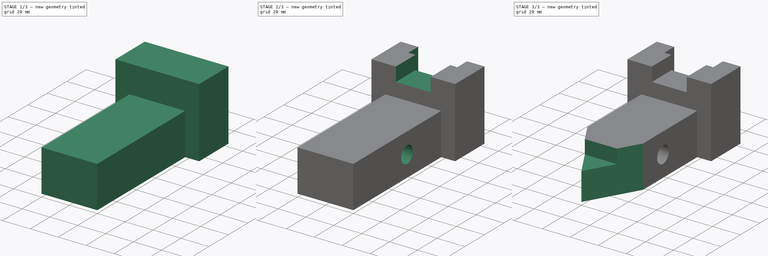
[diagram: build sequence overview — one tinted view per stage of 3, left to right]
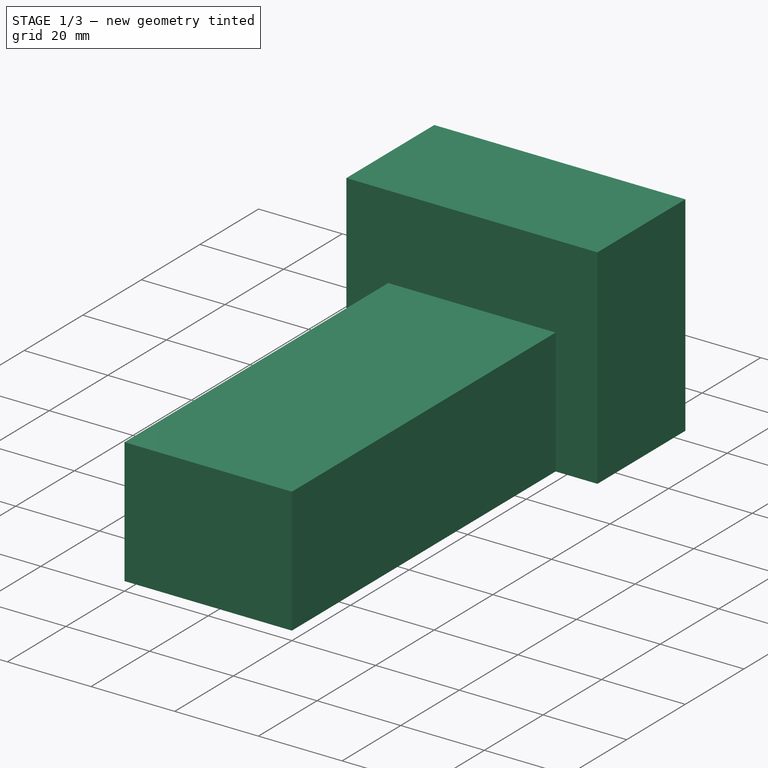
[diagram: stage 1 of 3 — iso view after this stage's code; geometry added in this stage tinted green]
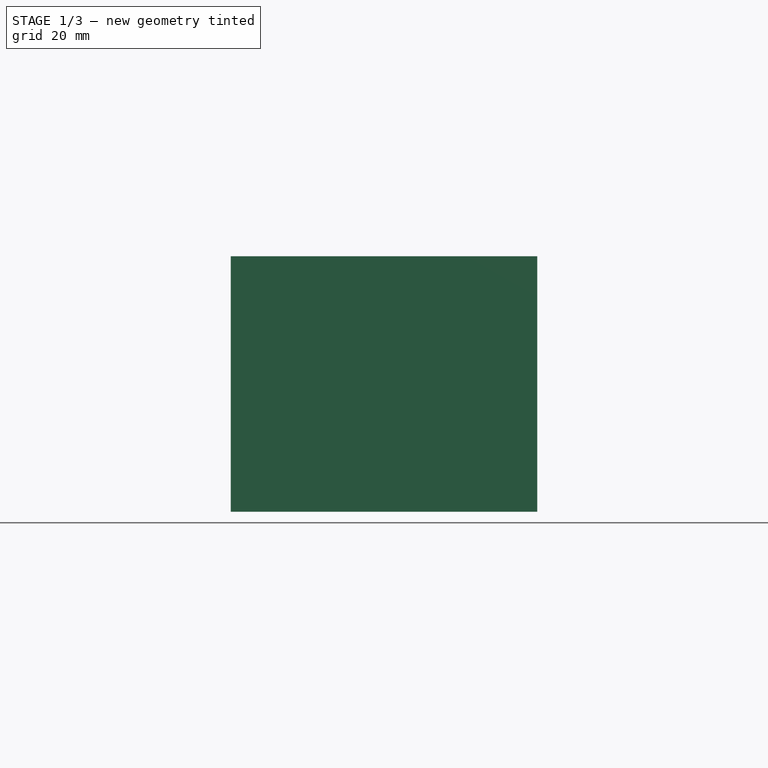
[diagram: stage 1 of 3 — front view after this stage's code; geometry added in this stage tinted green]
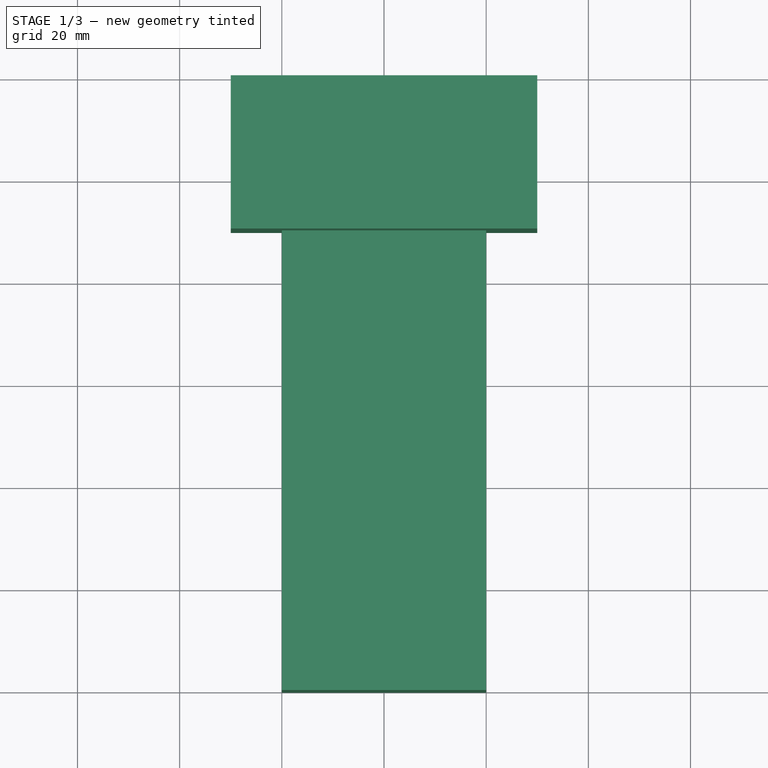
[diagram: stage 1 of 3 — top view after this stage's code; geometry added in this stage tinted green]
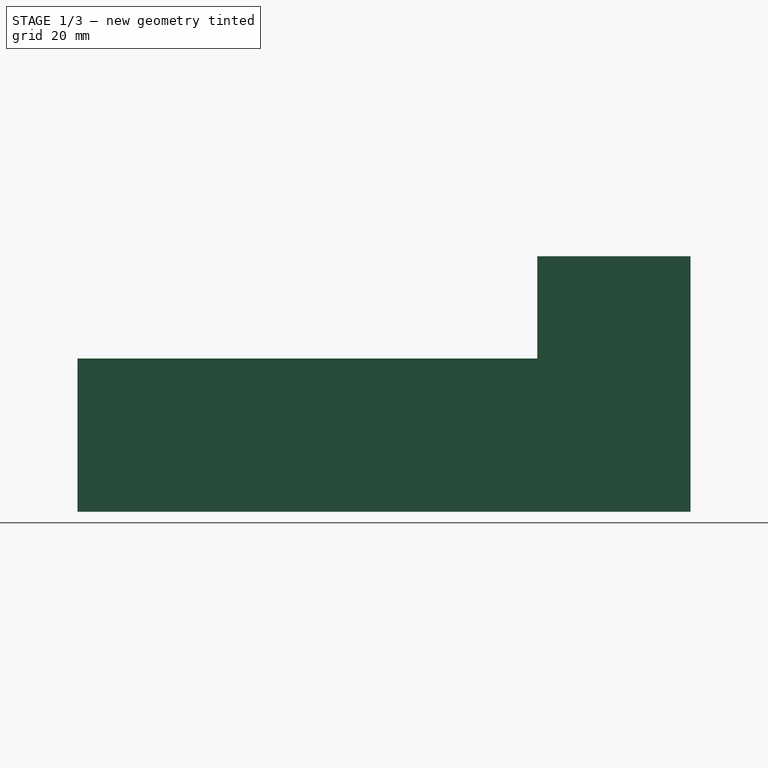
[diagram: stage 1 of 3 — right view after this stage's code; geometry added in this stage tinted green]
FCSTD DOCUMENT  (FreeCAD 0.16R6700 (Git))
Label: ejer5 final
License: All rights reserved
LicenseURL: http://en.wikipedia.org/wiki/All_rights_reserved
objects: Sketcher::SketchObject×7, PartDesign::Pocket×5, PartDesign::Pad×2
note: 21 computed .brp shape members not serialized (recipe doc carries the construction recipe); baked Part::Feature solids carry a one-line shape summary decoded from their .brp

FEATURE [Sketcher::SketchObject] Sketch
  Placement = pos=(0,0,0) rot=(-1,0,0;4.71239rad)
  sketch-geometry (4):
    g0: LineSegment StartX=-30 StartY=0 StartZ=0 EndX=30 EndY=0 EndZ=0
    g1: LineSegment StartX=30 StartY=0 StartZ=0 EndX=30 EndY=50 EndZ=0
    g2: LineSegment StartX=30 StartY=50 StartZ=0 EndX=-30 EndY=50 EndZ=0
    g3: LineSegment StartX=-30 StartY=50 StartZ=0 EndX=-30 EndY=0 EndZ=0
  constraints (12):
    c: Coincident(g0,g1)
    c: Coincident(g1,g2)
    c: Coincident(g2,g3)
    c: Coincident(g3,g0)
    c: Horizontal(g0)
    c: Horizontal(g2)
    c: Vertical(g1)
    c: Vertical(g3)
    c: DistanceY(g3,g3) = 50
    c: DistanceX(g2,g2) = 60
    c: Symmetric(g0,g0,g-2)
    c: PointOnObject(g-1,g0)
FEATURE [PartDesign::Pad] Pad
  Length = 30
  Length2 = 100
  Placement = pos=(0,0,0) rot=(-1,0,0;4.71239rad)
  Sketch = -> Sketch
  Type = 0
FEATURE [Sketcher::SketchObject] Sketch001
  Placement = pos=(0,-30,0) rot=(1,0,0;1.5708rad)
  Support = -> Pad [Face6]
  sketch-geometry (4):
    g0: LineSegment StartX=-20 StartY=0 StartZ=0 EndX=20 EndY=0 EndZ=0
    g1: LineSegment StartX=20 StartY=0 StartZ=0 EndX=20 EndY=30 EndZ=0
    g2: LineSegment StartX=20 StartY=30 StartZ=0 EndX=-20 EndY=30 EndZ=0
    g3: LineSegment StartX=-20 StartY=30 StartZ=0 EndX=-20 EndY=0 EndZ=0
  constraints (12):
    c: Coincident(g0,g1)
    c: Coincident(g1,g2)
    c: Coincident(g2,g3)
    c: Coincident(g3,g0)
    c: Horizontal(g0)
    c: Horizontal(g2)
    c: Vertical(g1)
    c: Vertical(g3)
    c: PointOnObject(g0,g-1)
    c: Symmetric(g0,g0,g-2)
    c: DistanceY(g1,g1) = 30
    c: DistanceX(g2,g2) = 40
FEATURE [PartDesign::Pad] Pad001
  Length = 90
  Length2 = 100
  Placement = pos=(0,0,0) rot=(-1,0,0;4.71239rad)
  Sketch = -> Sketch001
  Type = 0
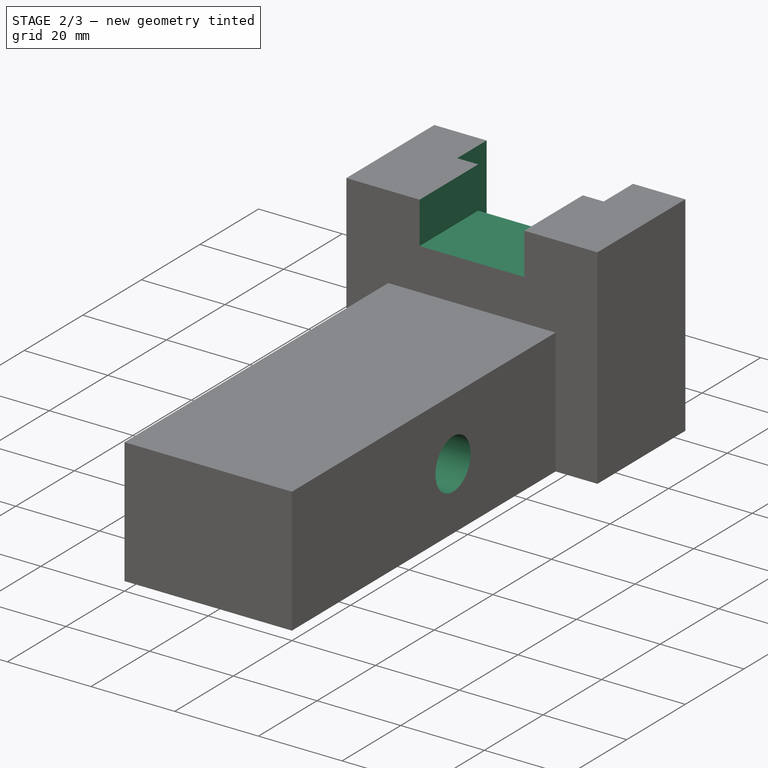
[diagram: stage 2 of 3 — iso view after this stage's code; geometry added in this stage tinted green]
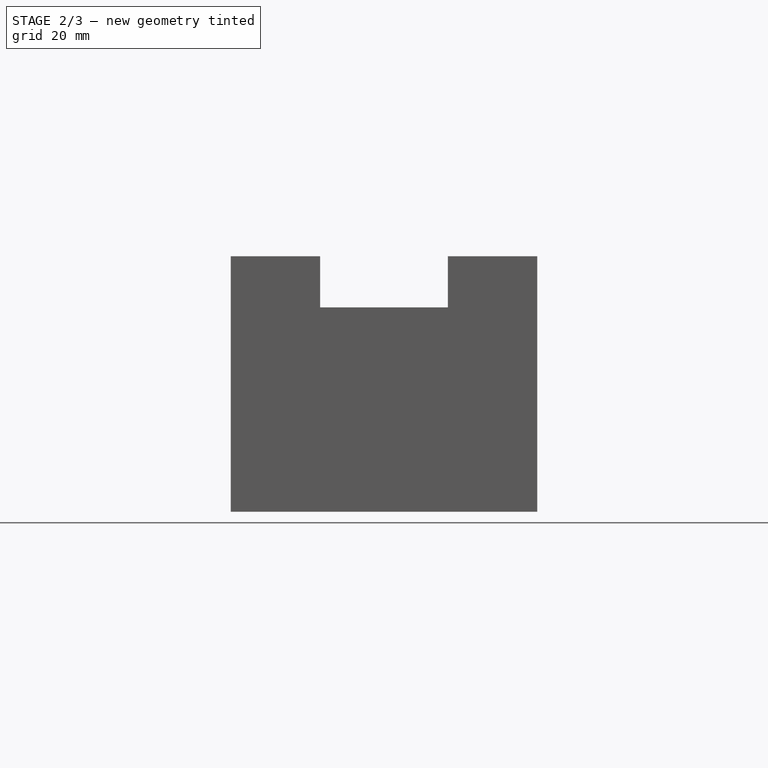
[diagram: stage 2 of 3 — front view after this stage's code; geometry added in this stage tinted green]
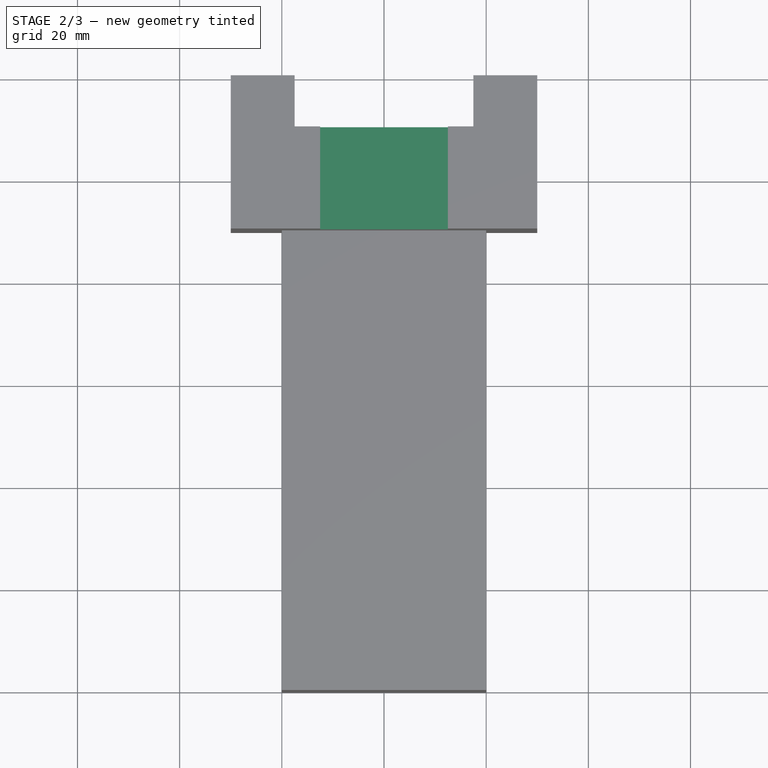
[diagram: stage 2 of 3 — top view after this stage's code; geometry added in this stage tinted green]
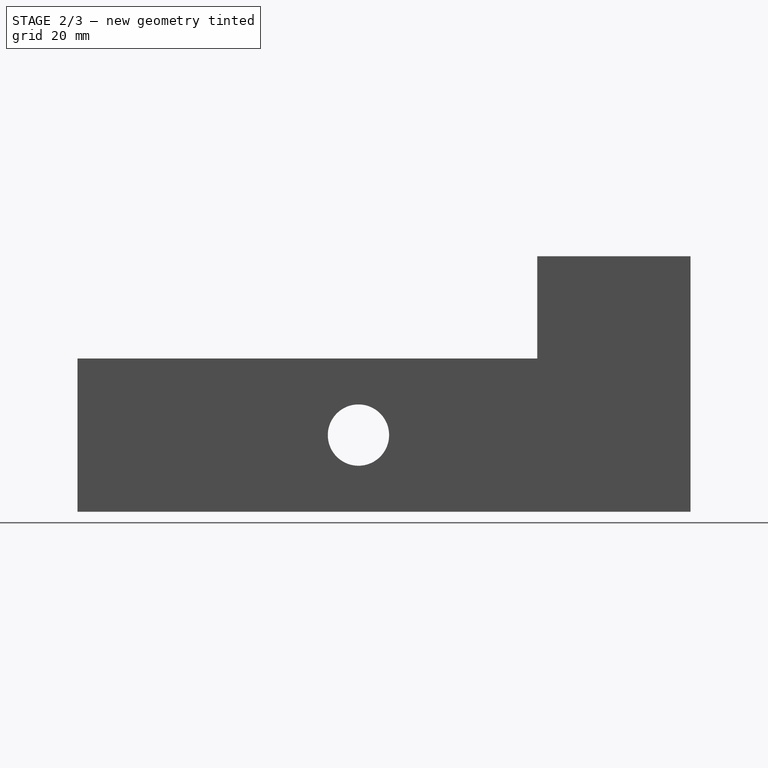
[diagram: stage 2 of 3 — right view after this stage's code; geometry added in this stage tinted green]
FEATURE [Sketcher::SketchObject] Sketch002
  Placement = pos=(0,0,50) rot=(0,0,1;3.14159rad)
  Support = -> Pad001 [Face2]
  sketch-geometry (4):
    g0: LineSegment StartX=-17.5 StartY=0 StartZ=0 EndX=17.5 EndY=0 EndZ=0
    g1: LineSegment StartX=17.5 StartY=0 StartZ=0 EndX=17.5 EndY=10 EndZ=0
    g2: LineSegment StartX=17.5 StartY=10 StartZ=0 EndX=-17.5 EndY=10 EndZ=0
    g3: LineSegment StartX=-17.5 StartY=10 StartZ=0 EndX=-17.5 EndY=0 EndZ=0
  constraints (12):
    c: Coincident(g0,g1)
    c: Coincident(g1,g2)
    c: Coincident(g2,g3)
    c: Coincident(g3,g0)
    c: Horizontal(g0)
    c: Horizontal(g2)
    c: Vertical(g1)
    c: Vertical(g3)
    c: PointOnObject(g0,g-1)
    c: Symmetric(g0,g0,g-2)
    c: DistanceX(g2,g2) = 35
    c: DistanceY(g1,g1) = 10
FEATURE [PartDesign::Pocket] Pocket
  Length = 5
  Placement = pos=(0,0,0) rot=(-1,0,0;4.71239rad)
  Sketch = -> Sketch002
  Type = 1
FEATURE [Sketcher::SketchObject] Sketch003
  ExternalGeometry = -> [Pocket]
  Placement = pos=(0,0,50) rot=(0,0,1;3.14159rad)
  Support = -> Pocket [Face2]
  sketch-geometry (4):
    g0: LineSegment StartX=-12.5 StartY=30 StartZ=0 EndX=12.5 EndY=30 EndZ=0
    g1: LineSegment StartX=12.5 StartY=30 StartZ=0 EndX=12.5 EndY=3.37666 EndZ=0
    g2: LineSegment StartX=12.5 StartY=3.37666 StartZ=0 EndX=-12.5 EndY=3.37666 EndZ=0
    g3: LineSegment StartX=-12.5 StartY=3.37666 StartZ=0 EndX=-12.5 EndY=30 EndZ=0
  constraints (11):
    c: Coincident(g0,g1)
    c: Coincident(g1,g2)
    c: Coincident(g2,g3)
    c: Coincident(g3,g0)
    c: Horizontal(g0)
    c: Horizontal(g2)
    c: Vertical(g1)
    c: Vertical(g3)
    c: PointOnObject(g0,g-3)
    c: Symmetric(g1,g2,g-2)
    c: DistanceX(g2,g2) = 25
FEATURE [PartDesign::Pocket] Pocket001
  Length = 10
  Placement = pos=(0,0,0) rot=(-1,0,0;4.71239rad)
  Sketch = -> Sketch003
  Type = 0
FEATURE [Sketcher::SketchObject] Sketch004
  Placement = pos=(20,0,0) rot=(0.707107,0,0.707107;3.14159rad)
  Support = -> Pocket001 [Face11]
  sketch-geometry (1):
    g0: Circle CenterX=15 CenterY=65 CenterZ=0 NormalX=0 NormalY=0 NormalZ=1 Radius=6
  constraints (3):
    c: DistanceY(g-1,g0) = 65
    c: DistanceX(g-1,g0) = 15
    c: Radius(g0) = 6
FEATURE [PartDesign::Pocket] Pocket002
  Length = 5
  Placement = pos=(0,0,0) rot=(-1,0,0;4.71239rad)
  Sketch = -> Sketch004
  Type = 1
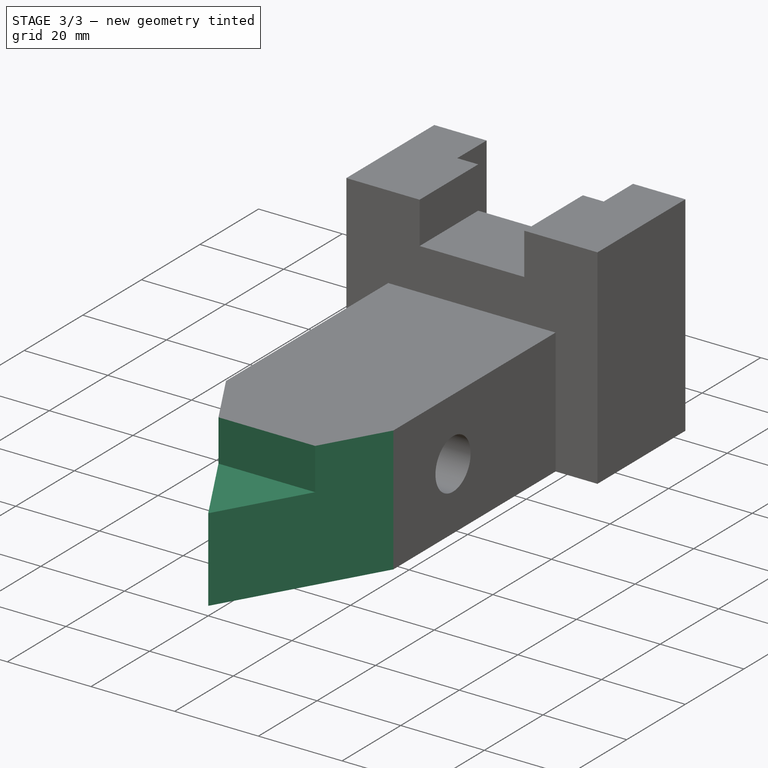
[diagram: stage 3 of 3 — iso view after this stage's code; geometry added in this stage tinted green]
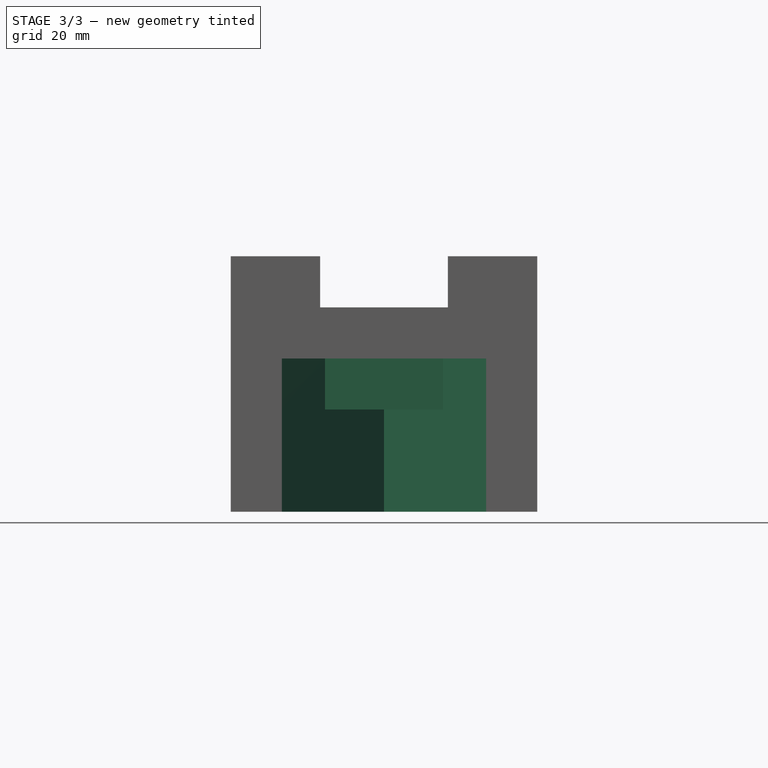
[diagram: stage 3 of 3 — front view after this stage's code; geometry added in this stage tinted green]
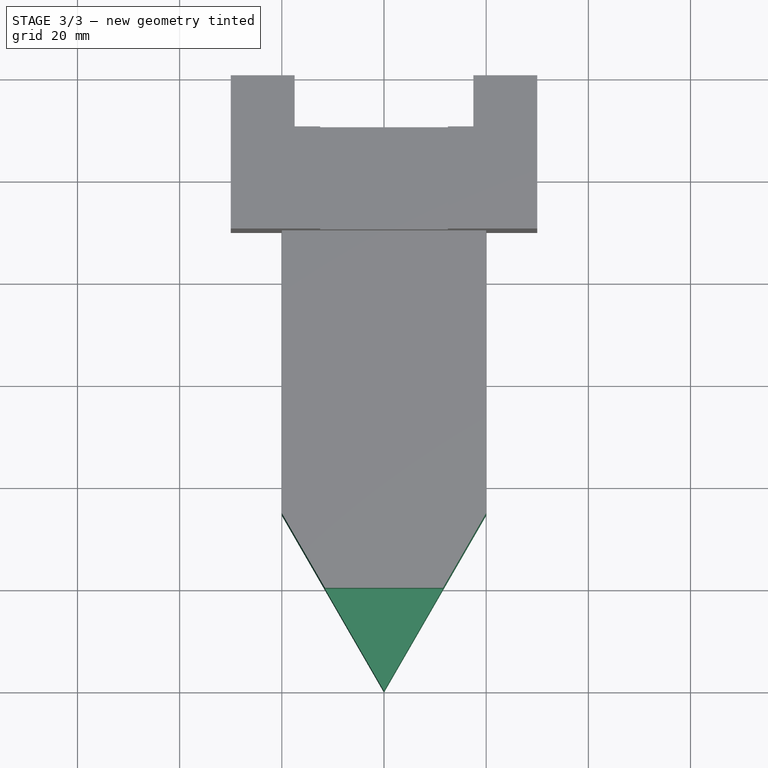
[diagram: stage 3 of 3 — top view after this stage's code; geometry added in this stage tinted green]
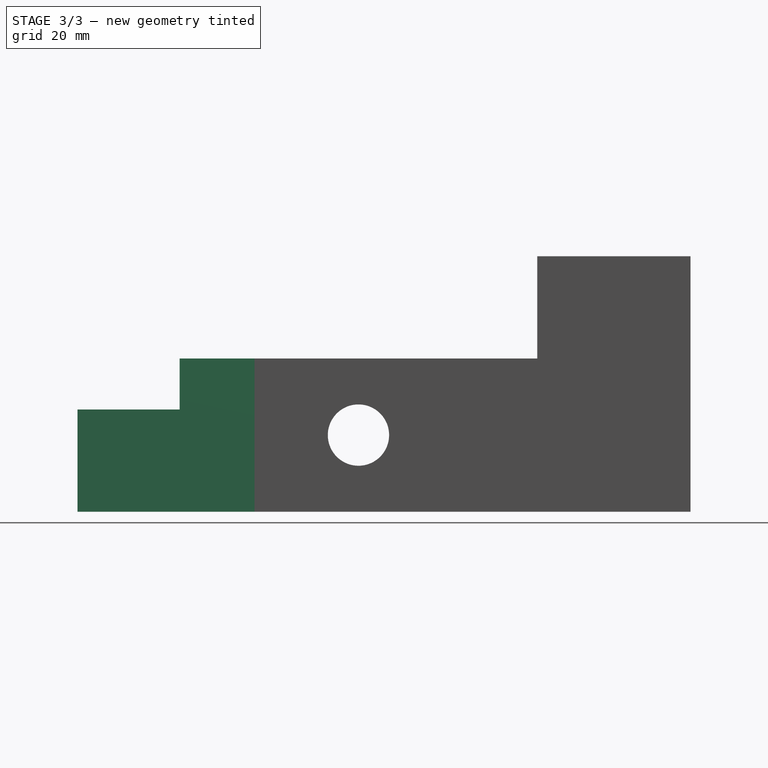
[diagram: stage 3 of 3 — right view after this stage's code; geometry added in this stage tinted green]
FEATURE [Sketcher::SketchObject] Sketch005
  ExternalGeometry = -> [Pocket002]
  Placement = pos=(0,0,30) rot=(0,0,1;3.14159rad)
  Support = -> Pocket002 [Face15]
  sketch-geometry (6):
    g0: LineSegment StartX=0 StartY=120 StartZ=0 EndX=-25 EndY=76.6987 EndZ=0
    g1: LineSegment StartX=0 StartY=120 StartZ=0 EndX=25 EndY=76.6987 EndZ=0
    g2: LineSegment [constr] StartX=0 StartY=120 StartZ=0 EndX=0 EndY=68.1595 EndZ=0
    g3: LineSegment StartX=-25 StartY=76.6987 StartZ=0 EndX=-25 EndY=127.885 EndZ=0
    g4: LineSegment StartX=-25 StartY=127.885 StartZ=0 EndX=25 EndY=127.885 EndZ=0
    g5: LineSegment StartX=25 StartY=127.885 StartZ=0 EndX=25 EndY=76.6987 EndZ=0
  constraints (16):
    c: Coincident(g1,g0)
    c: Angle(g0,g1) = 1.0472
    c: PointOnObject(g0,g-2)
    c: PointOnObject(g0,g-4)
    c: Coincident(g2,g0)
    c: Angle(g0,g2) = 0.523599
    c: PointOnObject(g2,g-2)
    c: Distance(g1) = 50
    c: Distance(g0) = 50
    c: Coincident(g0,g3)
    c: Vertical(g3)
    c: Coincident(g3,g4)
    c: Horizontal(g4)
    c: Coincident(g4,g5)
    c: Coincident(g5,g1)
    c: Vertical(g5)
FEATURE [PartDesign::Pocket] Pocket003
  Length = 5
  Placement = pos=(0,0,0) rot=(-1,0,0;4.71239rad)
  Sketch = -> Sketch005
  Type = 1
FEATURE [Sketcher::SketchObject] Sketch006
  ExternalGeometry = -> [Pocket003]
  Placement = pos=(0,0,30) rot=(0,0,1;3.14159rad)
  Support = -> Pocket003 [Face16]
  sketch-geometry (4):
    g0: LineSegment StartX=-29.7392 StartY=125.998 StartZ=0 EndX=32.3438 EndY=125.998 EndZ=0
    g1: LineSegment StartX=32.3438 StartY=125.998 StartZ=0 EndX=32.3438 EndY=100 EndZ=0
    g2: LineSegment StartX=32.3438 StartY=100 StartZ=0 EndX=-29.7392 EndY=100 EndZ=0
    g3: LineSegment StartX=-29.7392 StartY=100 StartZ=0 EndX=-29.7392 EndY=125.998 EndZ=0
  constraints (9):
    c: Coincident(g0,g1)
    c: Coincident(g1,g2)
    c: Coincident(g2,g3)
    c: Coincident(g3,g0)
    c: Horizontal(g0)
    c: Horizontal(g2)
    c: Vertical(g1)
    c: Vertical(g3)
    c: DistanceY(g2,g-4) = 20
FEATURE [PartDesign::Pocket] Pocket004
  Length = 10
  Placement = pos=(0,0,0) rot=(-1,0,0;4.71239rad)
  Sketch = -> Sketch006
  Type = 0
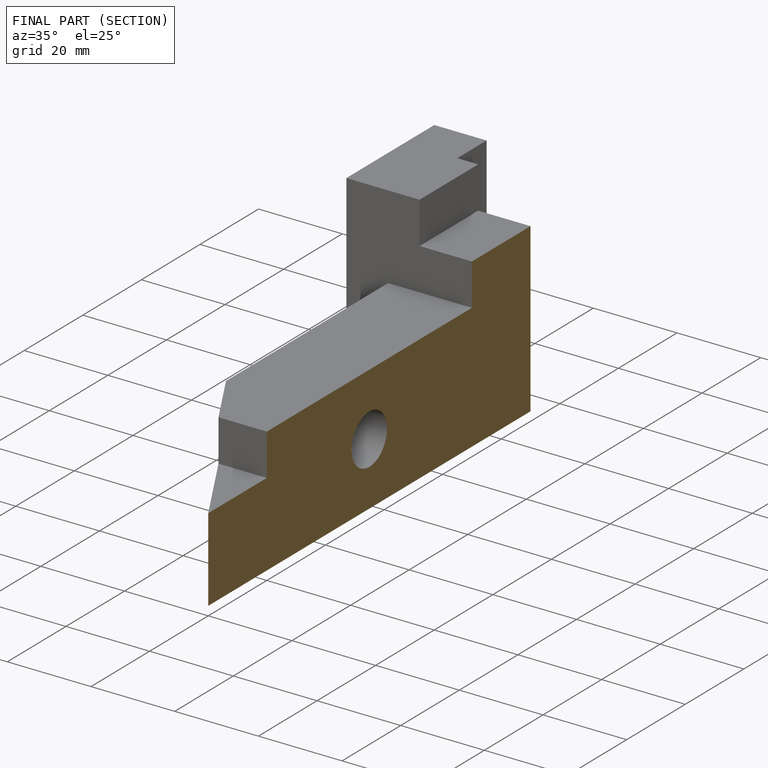
[diagram: finished part — half-section view (interior)]
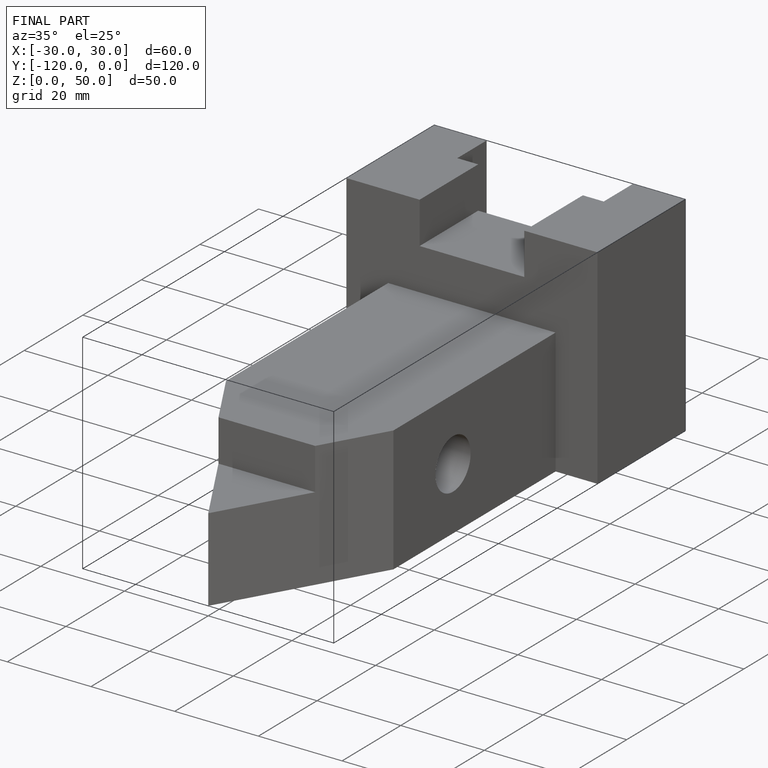
[diagram: finished part — iso view with bounding-box wireframe]
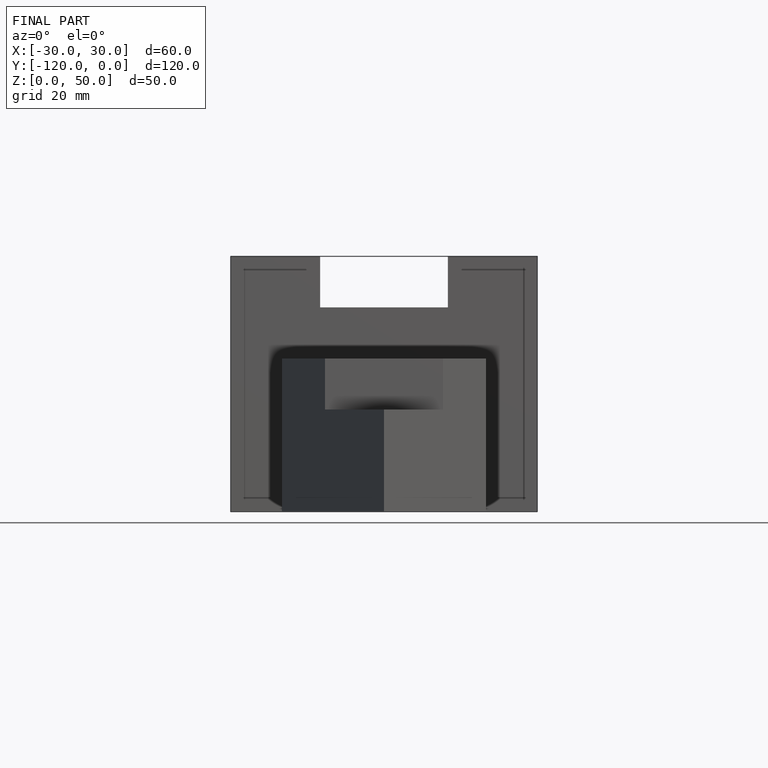
[diagram: finished part — front view with bounding-box wireframe]
